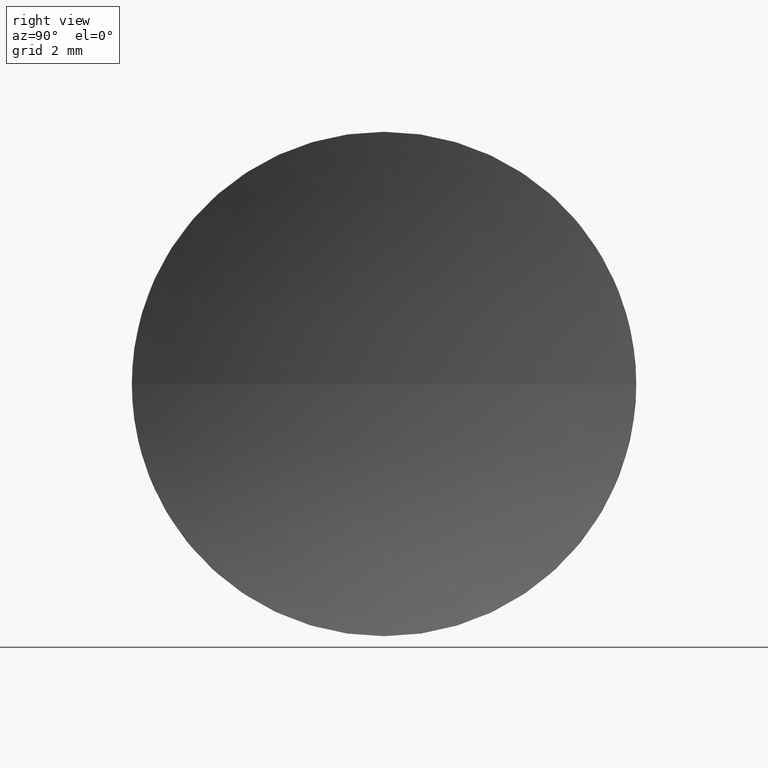
[diagram: clean part render]
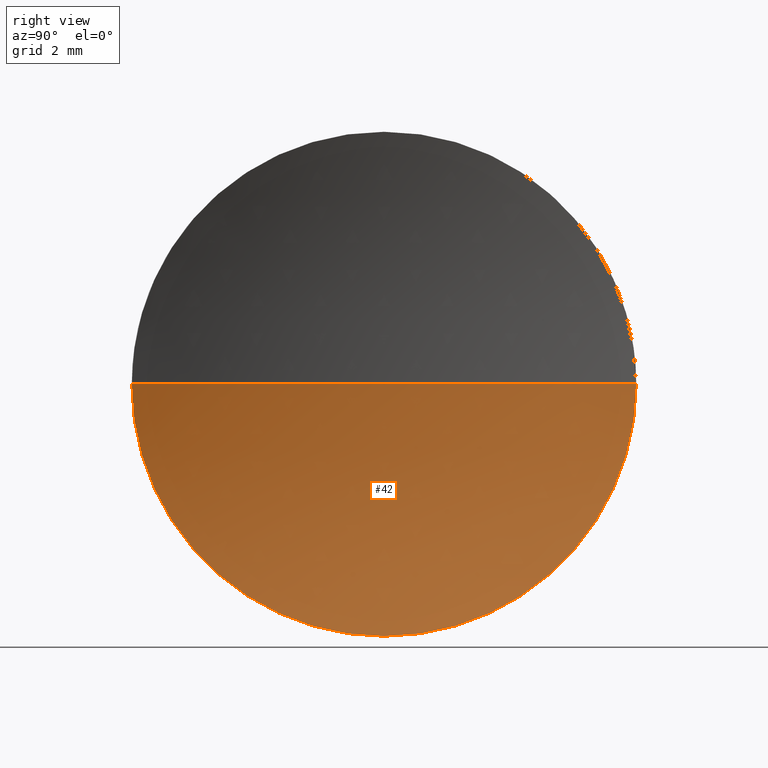
[diagram: same view with one face highlighted and labeled with its STEP entity id]
A machine part, right view. The second image highlights one B-rep face of the part: STEP entity #42.
In plain terms, the highlighted spherical surface has radius 20 mm.
Its self-contained STEP definition (entity closure, byte-faithful):
#4 = CARTESIAN_POINT ( 'NONE',  ( 80.54632775646548700, 34.68901056168621700, 0.0000000000000000000 ) ) ;
#12 = CIRCLE ( 'NONE', #170, 20.00000000000000400 ) ;
#18 = DIRECTION ( 'NONE',  ( 0.0000000000000000000, 0.0000000000000000000, 1.000000000000000000 ) ) ;
#19 = CARTESIAN_POINT ( 'NONE',  ( 61.54797256450216000, 28.43901056168620700, 0.0000000000000000000 ) ) ;
#20 = DIRECTION ( 'NONE',  ( 0.0000000000000000000, -1.000000000000000000, -1.224646799147353200E-016 ) ) ;
#24 = ORIENTED_EDGE ( 'NONE', *, *, #76, .T. ) ;
#34 = SPHERICAL_SURFACE ( 'NONE', #78, 20.00000000000000400 ) ;
#35 = DIRECTION ( 'NONE',  ( 0.0000000000000000000, 0.0000000000000000000, -1.000000000000000000 ) ) ;
#41 = DIRECTION ( 'NONE',  ( 0.0000000000000000000, 0.0000000000000000000, 1.000000000000000000 ) ) ;
#42 = ADVANCED_FACE ( 'NONE', ( #126 ), #34, .F. ) ;
#43 = ORIENTED_EDGE ( 'NONE', *, *, #81, .F. ) ;
#61 = CARTESIAN_POINT ( 'NONE',  ( 61.54797256450216000, 34.68901056168621700, -6.250000000000004400 ) ) ;
#62 = CARTESIAN_POINT ( 'NONE',  ( 61.54797256450216000, 40.93901056168623100, 7.654042494670971400E-016 ) ) ;
#64 = DIRECTION ( 'NONE',  ( -1.000000000000000000, 0.0000000000000000000, 0.0000000000000000000 ) ) ;
#68 = VERTEX_POINT ( 'NONE', #19 ) ;
#70 = ORIENTED_EDGE ( 'NONE', *, *, #99, .F. ) ;
#71 = DIRECTION ( 'NONE',  ( -1.000000000000000000, -0.0000000000000000000, -0.0000000000000000000 ) ) ;
#76 = EDGE_CURVE ( 'NONE', #97, #110, #12, .T. ) ;
#78 = AXIS2_PLACEMENT_3D ( 'NONE', #93, #121, #146 ) ;
#81 = EDGE_CURVE ( 'NONE', #68, #110, #160, .T. ) ;
#83 = AXIS2_PLACEMENT_3D ( 'NONE', #4, #35, #64 ) ;
#85 = CIRCLE ( 'NONE', #103, 6.250000000000005300 ) ;
#91 = CARTESIAN_POINT ( 'NONE',  ( 60.54632775646548700, 34.68901056168621700, 0.0000000000000000000 ) ) ;
#93 = CARTESIAN_POINT ( 'NONE',  ( 80.54632775646548700, 34.68901056168621700, 0.0000000000000000000 ) ) ;
#97 = VERTEX_POINT ( 'NONE', #62 ) ;
#99 = EDGE_CURVE ( 'NONE', #127, #68, #85, .T. ) ;
#103 = AXIS2_PLACEMENT_3D ( 'NONE', #150, #163, #18 ) ;
#104 = CARTESIAN_POINT ( 'NONE',  ( 80.54632775646548700, 34.68901056168621700, 0.0000000000000000000 ) ) ;
#106 = DIRECTION ( 'NONE',  ( 0.0000000000000000000, -1.224646799147353200E-016, 1.000000000000000000 ) ) ;
#110 = VERTEX_POINT ( 'NONE', #91 ) ;
#119 = CARTESIAN_POINT ( 'NONE',  ( 61.54797256450216000, 34.68901056168621700, 0.0000000000000000000 ) ) ;
#121 = DIRECTION ( 'NONE',  ( 0.0000000000000000000, 0.0000000000000000000, 1.000000000000000000 ) ) ;
#126 = FACE_OUTER_BOUND ( 'NONE', #172, .T. ) ;
#127 = VERTEX_POINT ( 'NONE', #61 ) ;
#132 = AXIS2_PLACEMENT_3D ( 'NONE', #119, #71, #41 ) ;
#138 = CIRCLE ( 'NONE', #132, 6.250000000000005300 ) ;
#146 = DIRECTION ( 'NONE',  ( 0.0000000000000000000, -1.000000000000000000, 0.0000000000000000000 ) ) ;
#150 = CARTESIAN_POINT ( 'NONE',  ( 61.54797256450216000, 34.68901056168621700, 0.0000000000000000000 ) ) ;
#160 = CIRCLE ( 'NONE', #83, 20.00000000000000400 ) ;
#163 = DIRECTION ( 'NONE',  ( -1.000000000000000000, -0.0000000000000000000, -0.0000000000000000000 ) ) ;
#168 = EDGE_CURVE ( 'NONE', #97, #127, #138, .T. ) ;
#170 = AXIS2_PLACEMENT_3D ( 'NONE', #104, #106, #20 ) ;
#172 = EDGE_LOOP ( 'NONE', ( #174, #24, #43, #70 ) ) ;
#174 = ORIENTED_EDGE ( 'NONE', *, *, #168, .F. ) ;